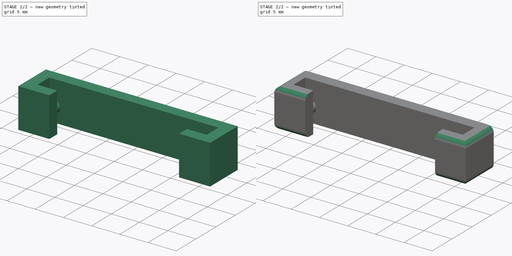
[diagram: build sequence overview — one tinted view per stage of 2, left to right]
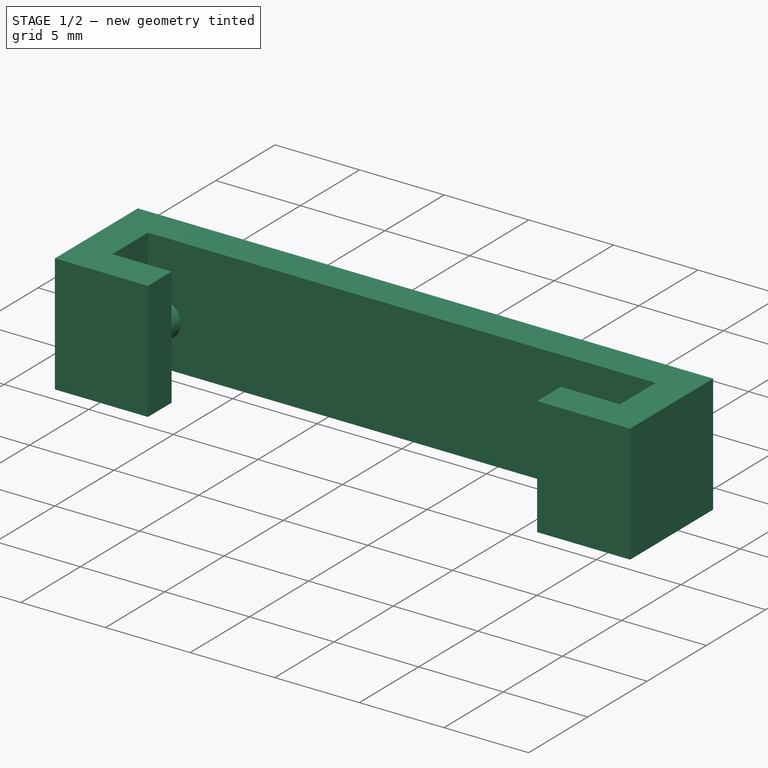
[diagram: stage 1 of 2 — iso view after this stage's code; geometry added in this stage tinted green]
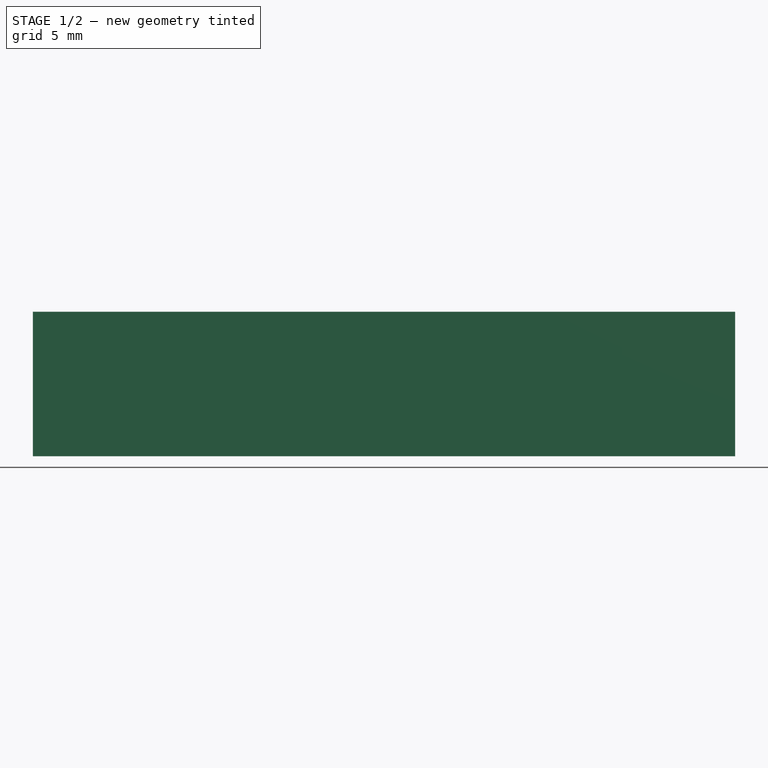
[diagram: stage 1 of 2 — front view after this stage's code; geometry added in this stage tinted green]
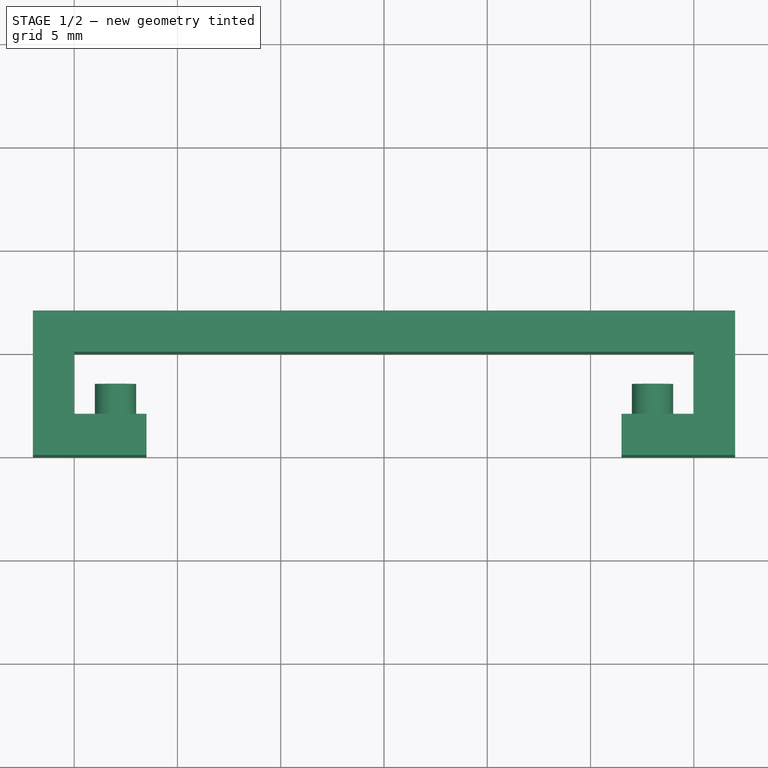
[diagram: stage 1 of 2 — top view after this stage's code; geometry added in this stage tinted green]
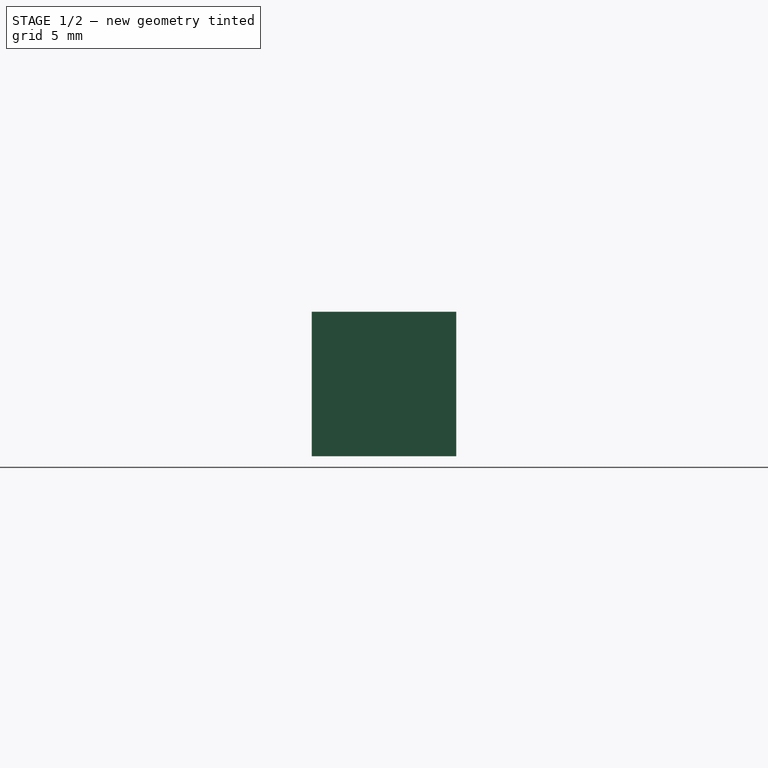
[diagram: stage 1 of 2 — right view after this stage's code; geometry added in this stage tinted green]
FCSTD DOCUMENT  (FreeCAD 0.19R23546 (Git))
Label: voltmeter_cradle
License: All rights reserved
LicenseURL: http://en.wikipedia.org/wiki/All_rights_reserved
objects: Sketcher::SketchObject×2, PartDesign::Pad×2, PartDesign::Fillet×1, PartDesign::Body×1
note: 9 computed .brp shape members not serialized (recipe doc carries the construction recipe); baked Part::Feature solids carry a one-line shape summary decoded from their .brp

FEATURE [Sketcher::SketchObject] Sketch
  MapMode = 5
  Support = -> [XY_Plane]
  sketch-geometry (13):
    g0: LineSegment StartX=0 StartY=0 StartZ=0 EndX=15 EndY=0 EndZ=0
    g1: LineSegment StartX=15 StartY=0 StartZ=0 EndX=15 EndY=-3 EndZ=0
    g2: LineSegment StartX=15 StartY=-3 StartZ=0 EndX=11.5 EndY=-3 EndZ=0
    g3: LineSegment StartX=11.5 StartY=-3 StartZ=0 EndX=11.5 EndY=-5 EndZ=0
    g4: LineSegment StartX=11.5 StartY=-5 StartZ=0 EndX=17 EndY=-5 EndZ=0
    g5: LineSegment StartX=17 StartY=-5 StartZ=0 EndX=17 EndY=2 EndZ=0
    g6: LineSegment StartX=17 StartY=2 StartZ=0 EndX=-17 EndY=2 EndZ=0
    g7: LineSegment StartX=-17 StartY=2 StartZ=0 EndX=-17 EndY=-5 EndZ=0
    g8: LineSegment StartX=-17 StartY=-5 StartZ=0 EndX=-11.5 EndY=-5 EndZ=0
    g9: LineSegment StartX=-11.5 StartY=-5 StartZ=0 EndX=-11.5 EndY=-3 EndZ=0
    g10: LineSegment StartX=-11.5 StartY=-3 StartZ=0 EndX=-15 EndY=-3 EndZ=0
    g11: LineSegment StartX=-15 StartY=-3 StartZ=0 EndX=-15 EndY=0 EndZ=0
    g12: LineSegment StartX=-15 StartY=0 StartZ=0 EndX=0 EndY=0 EndZ=0
  constraints (35):
    c: Coincident(g0,g-1)
    c: PointOnObject(g0,g-1)
    c: Coincident(g0,g1)
    c: Vertical(g1)
    c: Coincident(g1,g2)
    c: Horizontal(g2)
    c: Coincident(g2,g3)
    c: Coincident(g3,g4)
    c: Horizontal(g4)
    c: Coincident(g4,g5)
    c: Vertical(g5)
    c: Coincident(g5,g6)
    c: Symmetric(g6,g5,g-2)
    c: Coincident(g6,g7)
    c: Vertical(g7)
    c: Coincident(g7,g8)
    c: Horizontal(g8)
    c: Coincident(g8,g9)
    c: Vertical(g9)
    c: Coincident(g9,g10)
    c: Horizontal(g10)
    c: Coincident(g10,g11)
    c: Vertical(g11)
    c: Coincident(g11,g12)
    c: Coincident(g12,g0)
    c: Symmetric(g11,g0,g-2)
    c: Symmetric(g9,g2,g-2)
    c: Vertical(g3)
    c: DistanceY(g0,g5) = 2
    c: DistanceY(g4,g1) = 2
    c: Horizontal(g8,g3)
    c: DistanceX(g0,g5) = 2
    c: DistanceY(g1,g0) = 3
    c: DistanceX(g8,g3) = 23
    c: DistanceX(g11,g0) = 30
FEATURE [PartDesign::Pad] Pad
  Direction = (1,1,1)
  Length = 7
  Length2 = 100
  Midplane = true
  Profile = -> Sketch
  Type = 0
FEATURE [Sketcher::SketchObject] Sketch001
  ExternalGeometry = -> [Pad]
  MapMode = 5
  Placement = pos=(0,-3,0) rot=(0,0.707107,0.707107;3.14159rad)
  Support = -> [Pad]
  sketch-geometry (2):
    g0: Circle CenterX=-13 CenterY=0 CenterZ=0 NormalX=0 NormalY=0 NormalZ=1 AngleXU=0 Radius=1
    g1: Circle CenterX=13 CenterY=0 CenterZ=0 NormalX=0 NormalY=0 NormalZ=1 AngleXU=0 Radius=1
  constraints (5):
    c: PointOnObject(g0,g-1)
    c: DistanceX(g0,g1) = 26
    c: Symmetric(g0,g1,g-2)
    c: Equal(g0,g1)
    c: Radius(g0) = 1
FEATURE [PartDesign::Pad] Pad001
  BaseFeature = -> Pad
  Direction = (1,1,1)
  Length = 1.5
  Length2 = 100
  Profile = -> Sketch001
  Type = 0
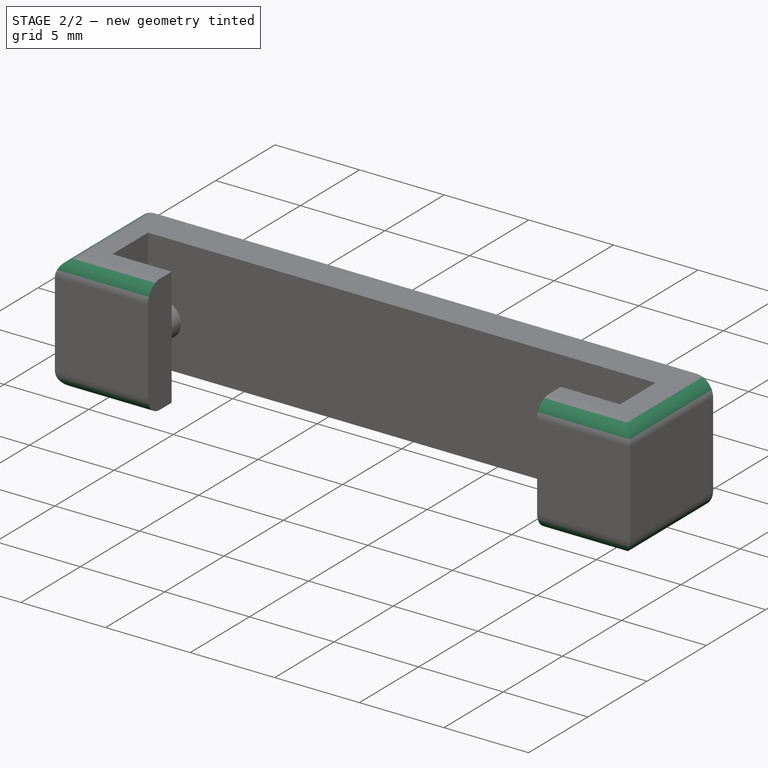
[diagram: stage 2 of 2 — iso view after this stage's code; geometry added in this stage tinted green]
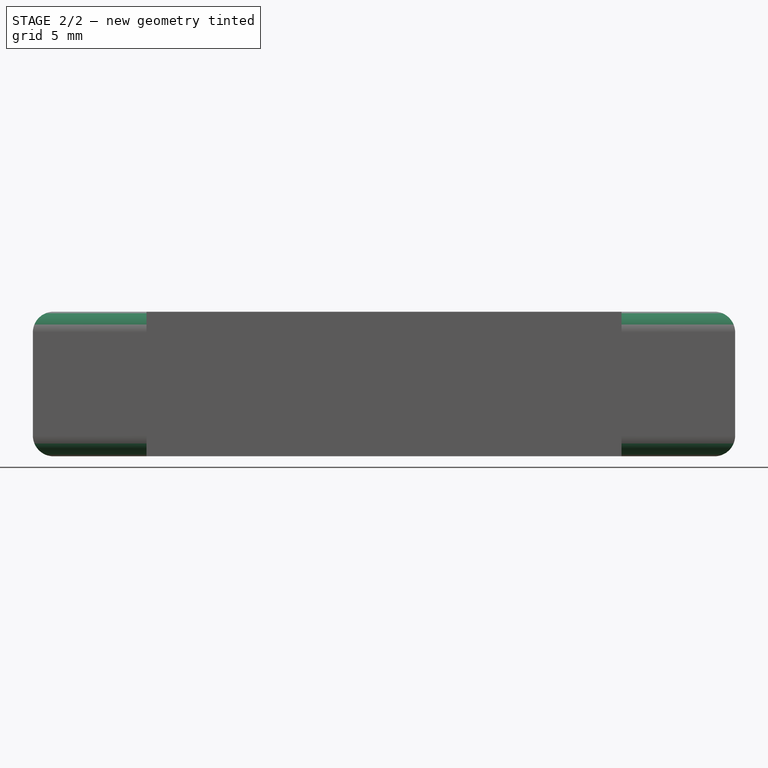
[diagram: stage 2 of 2 — front view after this stage's code; geometry added in this stage tinted green]
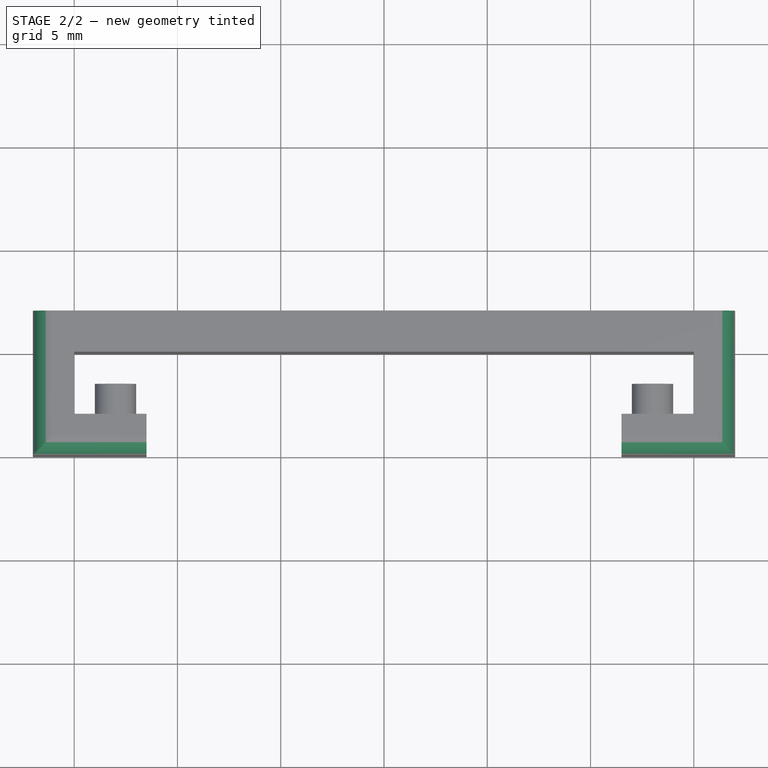
[diagram: stage 2 of 2 — top view after this stage's code; geometry added in this stage tinted green]
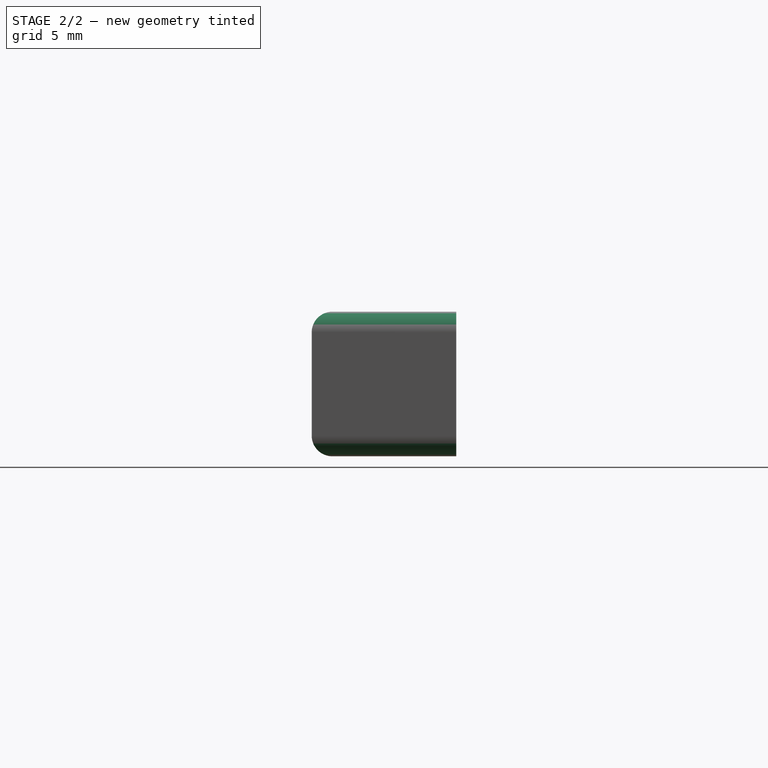
[diagram: stage 2 of 2 — right view after this stage's code; geometry added in this stage tinted green]
FEATURE [PartDesign::Fillet] Fillet
  Base = -> Pad001 [Edge23,Edge27,Edge17,Edge13,Edge26,Edge24,Edge14,Edge16]
  BaseFeature = -> Pad001
  Radius = 1
  SupportTransform = false
FEATURE [PartDesign::Body] Body
  Group = -> [Sketch,Pad,Sketch001,Pad001,Fillet]
  Origin = -> Origin
  Tip = -> Fillet
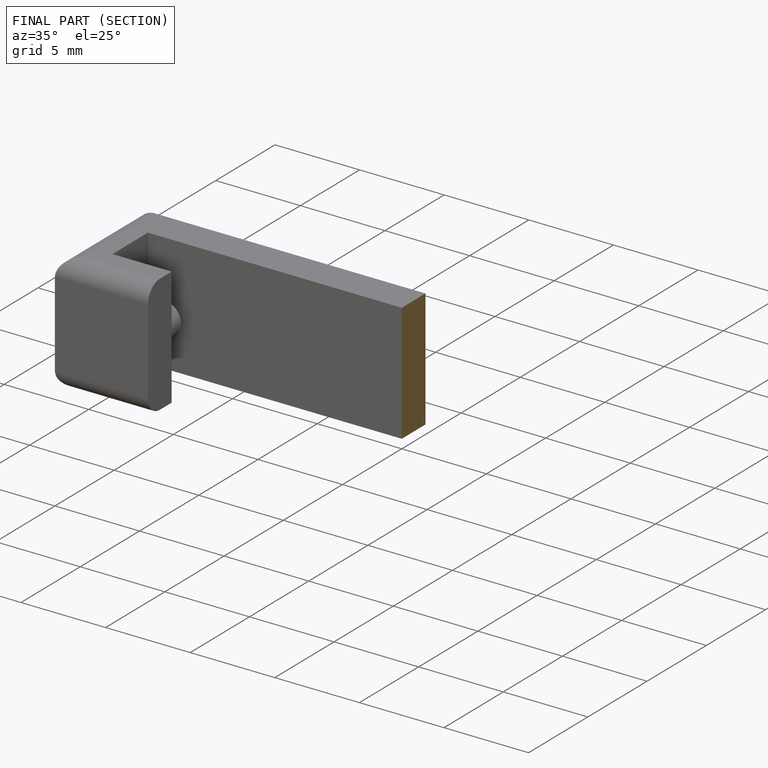
[diagram: finished part — half-section view (interior)]
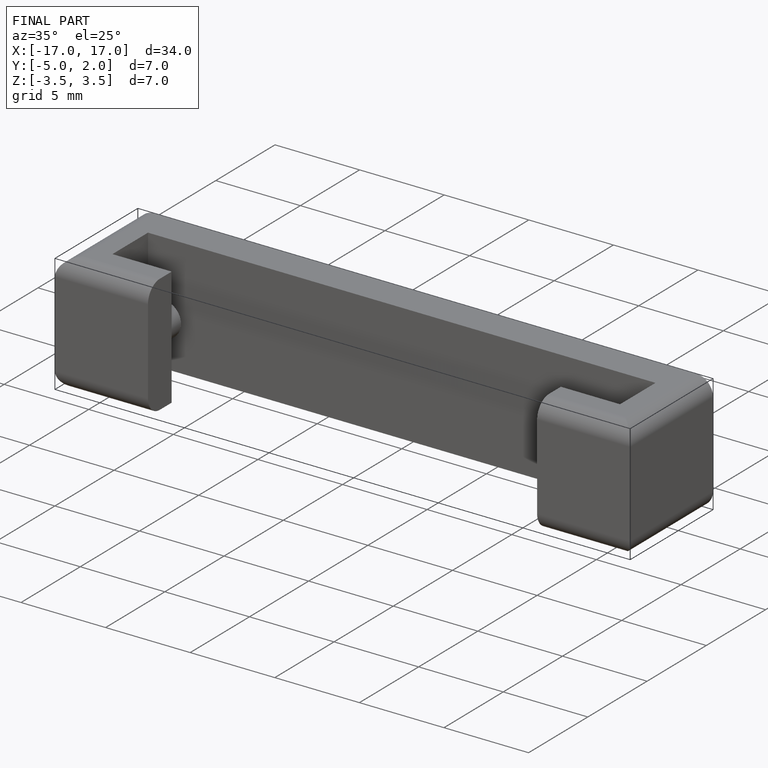
[diagram: finished part — iso view with bounding-box wireframe]
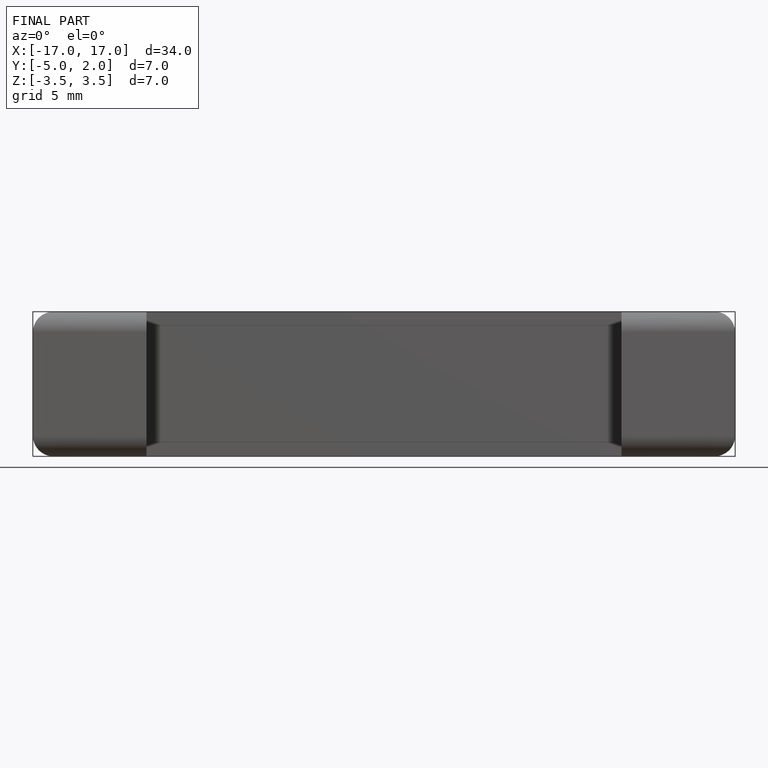
[diagram: finished part — front view with bounding-box wireframe]
